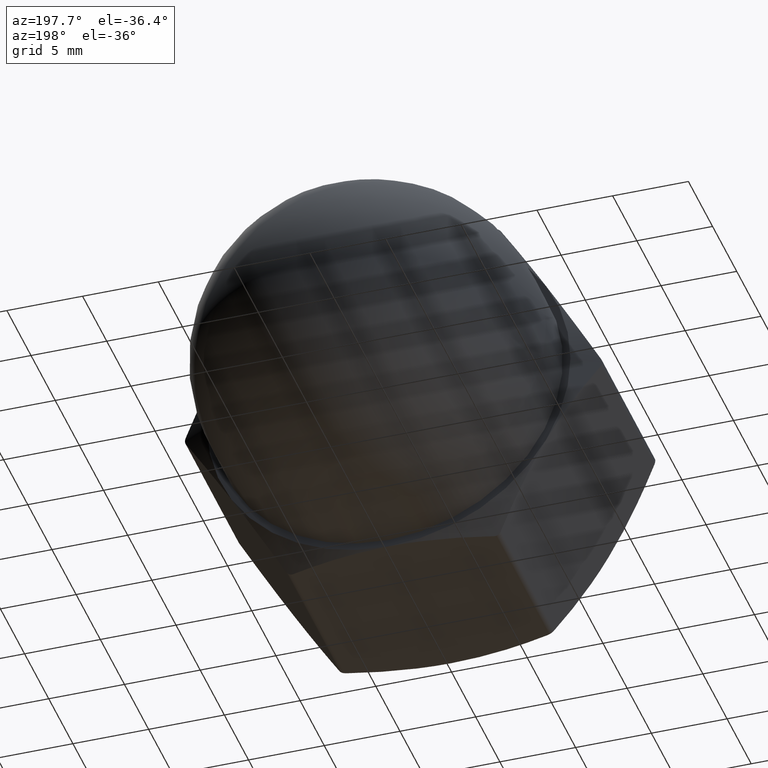
[diagram: clean part render]
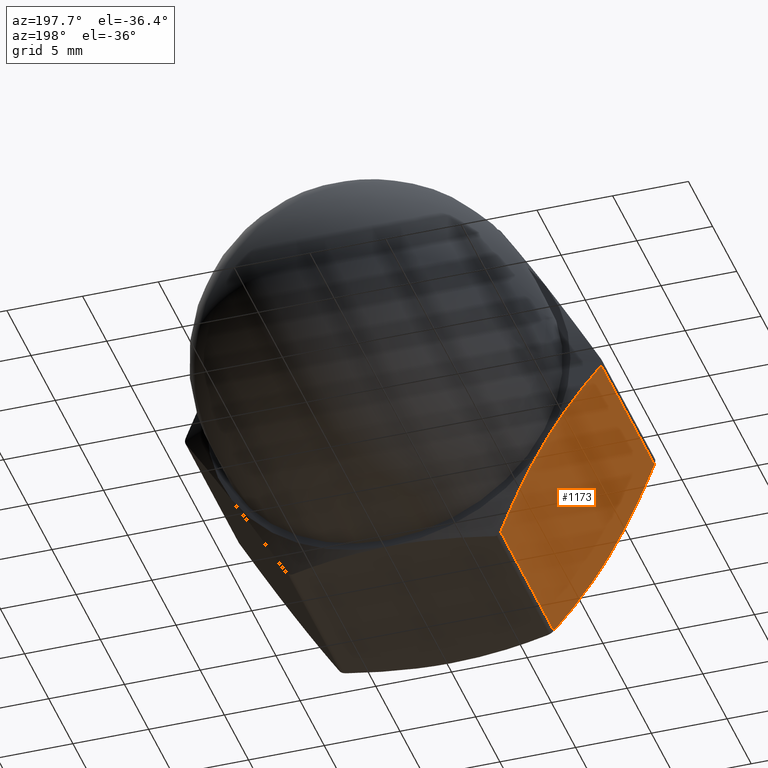
[diagram: same view with one face highlighted and labeled with its STEP entity id]
A machine part, auxiliary view. The second image highlights one B-rep face of the part: STEP entity #1173.
In plain terms, the highlighted planar face has unit normal (0.866, -0, 0.5).
Its self-contained STEP definition (entity closure, byte-faithful):
#44 = VERTEX_POINT ( 'NONE', #941 ) ;
#66 = DIRECTION ( 'NONE',  ( 0.0000000000000000000, -1.000000000000000000, 0.0000000000000000000 ) ) ;
#85 = CARTESIAN_POINT ( 'NONE',  ( -7.614553384551767200, 0.6867803944025463500, -10.81120666101079100 ) ) ;
#111 = CARTESIAN_POINT ( 'NONE',  ( -10.39230484541326400, 13.00000000000000000, -6.000000000000001800 ) ) ;
#128 = CARTESIAN_POINT ( 'NONE',  ( -6.928203230275513200, 13.00000000000000000, -11.99999999999999800 ) ) ;
#188 = CARTESIAN_POINT ( 'NONE',  ( -13.71206889325361400, 12.01022088346238600, -0.2500000000000066100 ) ) ;
#192 = CARTESIAN_POINT ( 'NONE',  ( -13.17005630627477300, 12.31321960559745700, -1.188793338989214700 ) ) ;
#225 = CARTESIAN_POINT ( 'NONE',  ( -7.072540797572907300, 12.01022088346238100, -11.75000000000002000 ) ) ;
#236 = LINE ( 'NONE', #397, #1107 ) ;
#271 = DIRECTION ( 'NONE',  ( -0.0000000000000000000, 1.000000000000000000, -0.0000000000000000000 ) ) ;
#280 = CARTESIAN_POINT ( 'NONE',  ( -10.39230484541326400, 0.0000000000000000000, -6.000000000000001800 ) ) ;
#281 = CARTESIAN_POINT ( 'NONE',  ( -10.39230484541326400, 13.00000000000000000, -6.000000000000001800 ) ) ;
#304 = ORIENTED_EDGE ( 'NONE', *, *, #990, .F. ) ;
#310 = CARTESIAN_POINT ( 'NONE',  ( -10.39230484541326400, 0.0000000000000000000, -6.000000000000001800 ) ) ;
#334 = EDGE_CURVE ( 'NONE', #1190, #44, #236, .T. ) ;
#350 = CARTESIAN_POINT ( 'NONE',  ( -10.39230484541326400, 0.0000000000000000000, -6.000000000000001800 ) ) ;
#358 = VERTEX_POINT ( 'NONE', #280 ) ;
#360 = B_SPLINE_CURVE_WITH_KNOTS ( 'NONE', 3,
 ( #571, #768, #1111, #496, #1115, #1216 ),
 .UNSPECIFIED., .F., .F.,
 ( 4, 2, 4 ),
 ( 0.0002976420579480877700, 0.003654043546377615900, 0.007010445034807144700 ),
 .UNSPECIFIED. ) ;
#390 = VECTOR ( 'NONE', #271, 1000.000000000000000 ) ;
#394 = CARTESIAN_POINT ( 'NONE',  ( -10.95658457648185000, 12.97678812667749600, -5.022638836107916800 ) ) ;
#397 = CARTESIAN_POINT ( 'NONE',  ( -7.072540797572919800, 13.00000000000000000, -11.74999999999999800 ) ) ;
#429 = CARTESIAN_POINT ( 'NONE',  ( -13.16874182127978100, 0.6860455640991266500, -1.191070093786317700 ) ) ;
#430 = VERTEX_POINT ( 'NONE', #111 ) ;
#456 = DIRECTION ( 'NONE',  ( 0.8660254037844386000, -0.0000000000000000000, 0.5000000000000001100 ) ) ;
#484 = B_SPLINE_CURVE_WITH_KNOTS ( 'NONE', 3,
 ( #281, #502, #394, #506, #1331, #822, #192, #188 ),
 .UNSPECIFIED., .F., .F.,
 ( 4, 2, 2, 4 ),
 ( 0.007010445034807144700, 0.008682192066603519600, 0.01035393909839989400, 0.01369743316199264500 ),
 .UNSPECIFIED. ) ;
#495 = FACE_OUTER_BOUND ( 'NONE', #875, .T. ) ;
#496 = CARTESIAN_POINT ( 'NONE',  ( -9.268740651451437900, 12.90643417457839700, -7.946070269507058200 ) ) ;
#502 = CARTESIAN_POINT ( 'NONE',  ( -10.67378928446765900, 13.00000000000000900, -5.512454650017772000 ) ) ;
#506 = CARTESIAN_POINT ( 'NONE',  ( -11.51623569666507200, 12.88676039513641100, -4.053294661437726100 ) ) ;
#530 = CARTESIAN_POINT ( 'NONE',  ( -8.990347189129838800, 0.1799719799072231900, -8.428261890743085500 ) ) ;
#537 = CARTESIAN_POINT ( 'NONE',  ( -12.62147978884729000, 0.4370987489728713200, -2.138955739012804400 ) ) ;
#571 = CARTESIAN_POINT ( 'NONE',  ( -7.072540797572907300, 12.01022088346238100, -11.75000000000002000 ) ) ;
#693 = LINE ( 'NONE', #1320, #390 ) ;
#719 = CARTESIAN_POINT ( 'NONE',  ( -8.161051184807728700, 0.4379369868610726300, -9.864644704742834900 ) ) ;
#731 = EDGE_CURVE ( 'NONE', #846, #969, #693, .T. ) ;
#763 = AXIS2_PLACEMENT_3D ( 'NONE', #128, #456, #1280 ) ;
#768 = CARTESIAN_POINT ( 'NONE',  ( -7.615867869546752500, 12.31395443590087500, -10.80892990621369000 ) ) ;
#798 = ORIENTED_EDGE ( 'NONE', *, *, #1325, .F. ) ;
#811 = CARTESIAN_POINT ( 'NONE',  ( -13.71206889325362600, 0.9897791165376179600, -0.2499999999999851500 ) ) ;
#822 = CARTESIAN_POINT ( 'NONE',  ( -12.62355850601880300, 12.56206301313892800, -2.135355295257168200 ) ) ;
#826 = CARTESIAN_POINT ( 'NONE',  ( -11.51586903937509600, 0.09356582542160567200, -4.053929730492947100 ) ) ;
#835 = CARTESIAN_POINT ( 'NONE',  ( -13.71206889325362600, 0.9897791165376179600, -0.2499999999999851500 ) ) ;
#839 = CARTESIAN_POINT ( 'NONE',  ( -10.11082040635887600, -5.999534365402207700E-015, -6.487545349982233300 ) ) ;
#846 = VERTEX_POINT ( 'NONE', #811 ) ;
#875 = EDGE_LOOP ( 'NONE', ( #1124, #1206, #798, #983, #1373, #304 ) ) ;
#941 = CARTESIAN_POINT ( 'NONE',  ( -7.072540797572919800, 0.9897791165376113000, -11.74999999999999800 ) ) ;
#944 = CARTESIAN_POINT ( 'NONE',  ( -7.072540797572919800, 0.9897791165376113000, -11.74999999999999800 ) ) ;
#949 = CARTESIAN_POINT ( 'NONE',  ( -13.71206889325361400, 12.01022088346238600, -0.2500000000000066100 ) ) ;
#958 = B_SPLINE_CURVE_WITH_KNOTS ( 'NONE', 3,
 ( #835, #429, #537, #826, #976, #350 ),
 .UNSPECIFIED., .F., .F.,
 ( 4, 2, 4 ),
 ( 0.0002976420579480880400, 0.003654043546377619000, 0.007010445034807148200 ),
 .UNSPECIFIED. ) ;
#969 = VERTEX_POINT ( 'NONE', #949 ) ;
#976 = CARTESIAN_POINT ( 'NONE',  ( -10.95744704231413500, -5.875020522155827200E-015, -5.021145001466604400 ) ) ;
#983 = ORIENTED_EDGE ( 'NONE', *, *, #1316, .F. ) ;
#990 = EDGE_CURVE ( 'NONE', #358, #44, #1346, .T. ) ;
#1038 = EDGE_CURVE ( 'NONE', #846, #358, #958, .T. ) ;
#1107 = VECTOR ( 'NONE', #66, 1000.000000000000000 ) ;
#1111 = CARTESIAN_POINT ( 'NONE',  ( -8.163129901979248300, 12.56290125102713200, -9.861044260987201300 ) ) ;
#1115 = CARTESIAN_POINT ( 'NONE',  ( -9.827162648512398800, 13.00000000000000900, -6.978854998533401000 ) ) ;
#1124 = ORIENTED_EDGE ( 'NONE', *, *, #1038, .F. ) ;
#1145 = CARTESIAN_POINT ( 'NONE',  ( -9.828025114344683300, 0.02321187332250560300, -6.977361163892086700 ) ) ;
#1173 = ADVANCED_FACE ( 'NONE', ( #495 ), #1375, .F. ) ;
#1190 = VERTEX_POINT ( 'NONE', #225 ) ;
#1206 = ORIENTED_EDGE ( 'NONE', *, *, #731, .T. ) ;
#1216 = CARTESIAN_POINT ( 'NONE',  ( -10.39230484541326400, 13.00000000000000000, -6.000000000000001800 ) ) ;
#1267 = CARTESIAN_POINT ( 'NONE',  ( -9.268373994161454000, 0.1132396048635813900, -7.946705338562277500 ) ) ;
#1280 = DIRECTION ( 'NONE',  ( 0.5000000000000001100, 0.0000000000000000000, -0.8660254037844386000 ) ) ;
#1316 = EDGE_CURVE ( 'NONE', #1190, #430, #360, .T. ) ;
#1320 = CARTESIAN_POINT ( 'NONE',  ( -13.71206889325361400, 13.00000000000000000, -0.2500000000000054400 ) ) ;
#1325 = EDGE_CURVE ( 'NONE', #430, #969, #484, .T. ) ;
#1331 = CARTESIAN_POINT ( 'NONE',  ( -11.79426250169670000, 12.82002802009277600, -3.571738109256917600 ) ) ;
#1346 = B_SPLINE_CURVE_WITH_KNOTS ( 'NONE', 3,
 ( #310, #839, #1145, #1267, #530, #719, #85, #944 ),
 .UNSPECIFIED., .F., .F.,
 ( 4, 2, 2, 4 ),
 ( 0.007010445034807148200, 0.008682192066603521300, 0.01035393909839989700, 0.01369743316199264700 ),
 .UNSPECIFIED. ) ;
#1373 = ORIENTED_EDGE ( 'NONE', *, *, #334, .T. ) ;
#1375 = PLANE ( 'NONE',  #763 ) ;